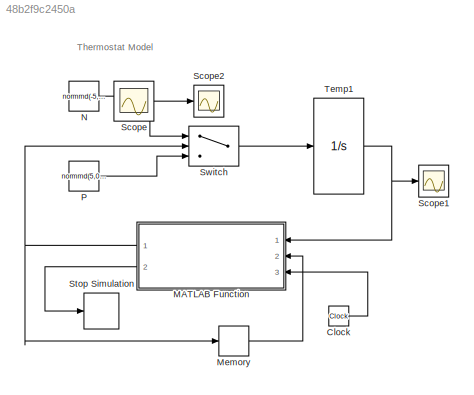
MODEL slx_48b2f9c2450a
KIND model
CONFIG AbsTol = 1e-8
CONFIG EnableMultiTasking = off
CONFIG FixedStep = auto
CONFIG MaxStep = 0.0001
CONFIG MinStep = auto
CONFIG RelTol = 1e-5
CONFIG SampleTimeConstraint = Unconstrained
CONFIG Solver = ode45
CONFIG SolverName = ode45
CONFIG StartTime = 0.0
CONFIG StopTime = 20
BLOCK [Clock] Clock
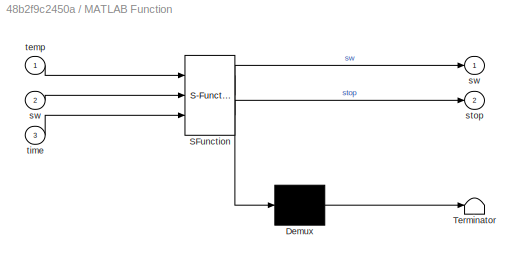
BLOCK [SubSystem] MATLAB Function
  ErrorFcn = Stateflow.Translate.translate
  PermitHierarchicalResolution = ExplicitOnly
  Ports = [3, 2]
  RequestExecContextInheritance = off
  SFBlockType = MATLAB Function
  TreatAsAtomicUnit = on
BLOCK [Demux] MATLAB Function/ Demux 
  Outputs = 1
  Ports = [1, 1]
BLOCK [S-Function] MATLAB Function/ SFunction 
  EnableBusSupport = on
  FunctionName = sf_sfun
  PortCounts = [3 3]
  Ports = [3, 3]
  SFcnIsStateOwnerBlock = off
  SFunctionDeploymentMode = off
  Tag = Stateflow S-Function termostatslx 2
BLOCK [Terminator] MATLAB Function/ Terminator 
BLOCK [Outport] MATLAB Function/stop
  IconDisplay = Port number
  Port = 2
BLOCK [Outport] MATLAB Function/sw
  IconDisplay = Port number
BLOCK [Inport] MATLAB Function/sw 
  IconDisplay = Port number
  Port = 2
BLOCK [Inport] MATLAB Function/temp
  IconDisplay = Port number
BLOCK [Inport] MATLAB Function/time
  IconDisplay = Port number
  Port = 3
BLOCK [Memory] Memory
  InitialCondition = 1
BLOCK [Constant] N
  Value = normrnd(-5,0.25)
BLOCK [Constant] P
  Value = normrnd(5,0.25)
BLOCK [Scope] Scope
  Floating = off
  IOType = viewer
  NumInputPorts = 1
  Ports = []
  ScopeSpecificationString = Simulink.scopes.TimeScopeBlockCfg('CurrentConfiguration', extmgr.ConfigurationSet(extmgr.Configuration('Core','General UI',true),extmgr.Configuration('Core','Source UI',true),extmgr.Configuration('Sources','WiredSimulink',true,'DataLoggingMaxPoints','7500','DataLoggingLimitDataPoints',true,'DataLoggingSaveFormat','Array','DataLoggingDecimation','1','DataLoggingDecimateData',true),extmgr.Configurat...<+1622ch>
BLOCK [Scope] Scope1
  Floating = off
  NumInputPorts = 1
  Ports = [1]
  ScopeSpecificationString = Simulink.scopes.TimeScopeBlockCfg('CurrentConfiguration', extmgr.ConfigurationSet(extmgr.Configuration('Core','General UI',true),extmgr.Configuration('Core','Source UI',true),extmgr.Configuration('Sources','WiredSimulink',true,'DataLoggingVariableName','ScopeData1'),extmgr.Configuration('Visuals','Time Domain',true,'SerializedDisplays',{struct('MinYLimReal','13.75','MaxYLimReal','26.25','YLabelRea...<+1453ch>
BLOCK [Scope] Scope2
  Floating = off
  NumInputPorts = 1
  Ports = [1]
  ScopeSpecificationString = Simulink.scopes.TimeScopeBlockCfg('CurrentConfiguration', extmgr.ConfigurationSet(extmgr.Configuration('Core','General UI',true),extmgr.Configuration('Core','Source UI',true),extmgr.Configuration('Sources','WiredSimulink',true,'DataLoggingVariableName','ScopeData1'),extmgr.Configuration('Visuals','Time Domain',true,'SerializedDisplays',{struct('MinYLimReal','-5.9846','MaxYLimReal','-3.9846','YLabe...<+1456ch>
BLOCK [Stop] Stop Simulation
BLOCK [Switch] Switch
  Criteria = u2 > Threshold
  InputSameDT = off
  SaturateOnIntegerOverflow = off
BLOCK [Integrator] Temp1
  InitialCondition = 25
  Ports = [1, 1]
  ZeroCross = off
ANNOTATION (root): Thermostat Model
LINE Clock:1 -> MATLAB Function:3
NET MATLAB Function:1 -> Memory:1, Switch:2
LINE MATLAB Function:2 -> Stop Simulation:1
LINE Memory:1 -> MATLAB Function:2
NET N:1 -> Scope2:1, Switch:1
LINE P:1 -> Switch:3
LINE Switch:1 -> Temp1:1
NET Temp1:1 -> MATLAB Function:1, Scope1:1
note: NET lines group one-source signal fan-out (src -> all destinations, sorted); 1:1 wires keep LINE
CHART MATLAB Function states=1 transitions=1
  STATE_LABEL 'eML_blk_kernel()'
  STATE_LABEL 'SCRIPT:\nfunction [sw,stop] = fcn(temp,sw,time)\nif sw ==1 && temp < 15\n    sw = sw - 1;\nelseif sw == 0 && temp > 40\n    sw = sw +1;\nend\nstop = 0;\nif temp < 25 && time > 8\n    stop = 1;\nend\n\n\n'
